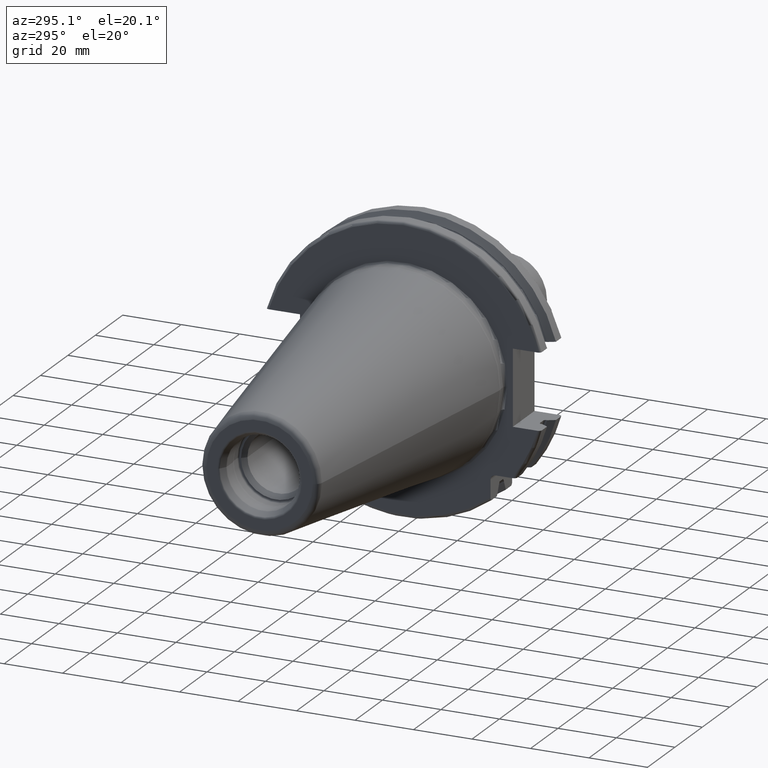
[diagram: clean part render]
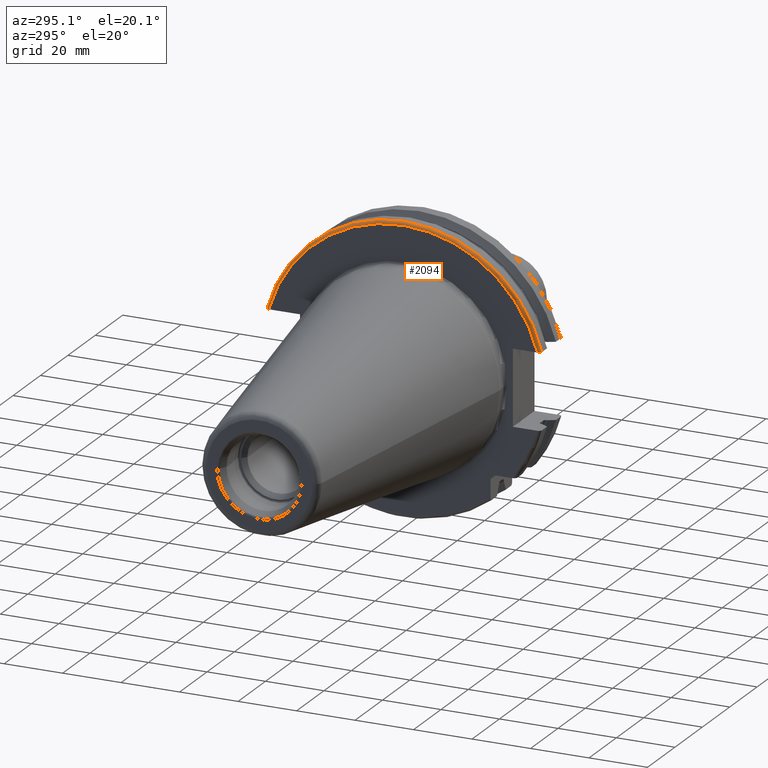
[diagram: same view with one face highlighted and labeled with its STEP entity id]
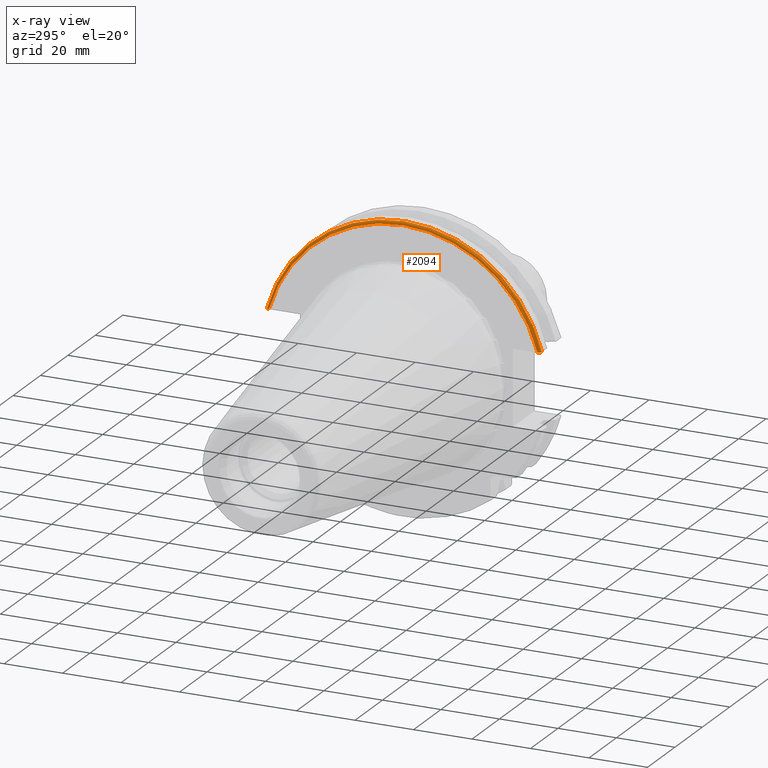
[diagram: x-ray of the same camera — body ghosted, the highlighted face saturated]
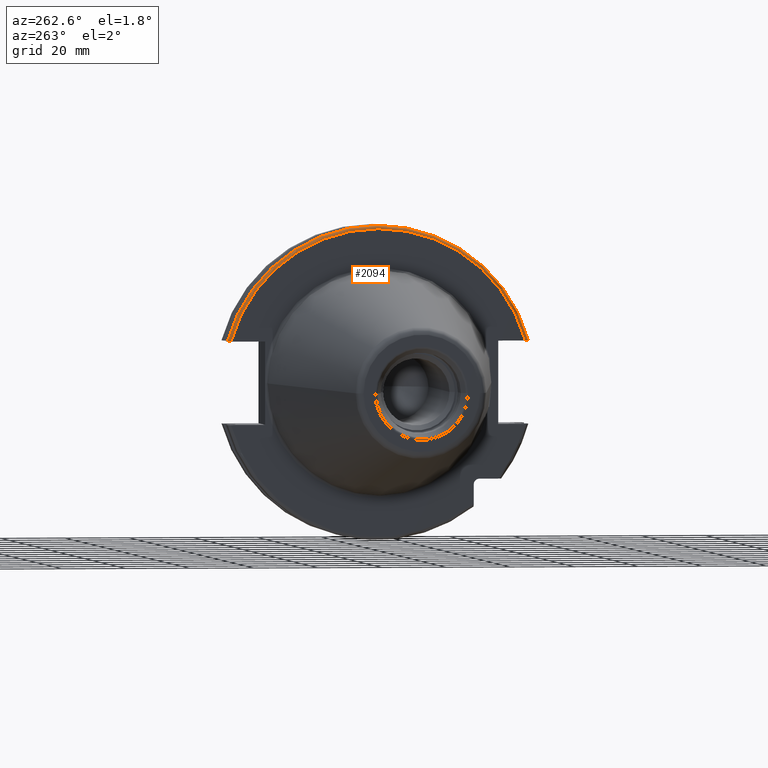
[diagram: same view with one face highlighted and labeled with its STEP entity id]
A machine part, auxiliary view. The second image highlights one B-rep face of the part: STEP entity #2094.
The next image is the same camera in x-ray: the body ghosted, the highlighted face saturated — about 0% of this face is hidden behind the body in this view.
A second angle (auxiliary view) of the same face is appended — the face is thin or edge-on in the first view.
In plain terms, the highlighted toroidal blend (fillet) surface has major radius 47.7375 mm and minor (blend) radius 1 mm.
Its self-contained STEP definition (entity closure, byte-faithful):
#211=CARTESIAN_POINT('',(3.2E0,0.E0,0.E0));
#212=DIRECTION('',(1.E0,0.E0,0.E0));
#213=DIRECTION('',(0.E0,9.627964123359E-1,2.702278083268E-1));
#214=AXIS2_PLACEMENT_3D('',#211,#212,#213);
#507=CARTESIAN_POINT('',(4.2E0,4.699929686974E1,1.29E1));
#508=CARTESIAN_POINT('',(4.123252333679E0,4.699929686974E1,1.29E1));
#509=CARTESIAN_POINT('',(3.974283567116E0,4.698148666181E1,1.29E1));
#510=CARTESIAN_POINT('',(3.759372583830E0,4.690310671304E1,1.29E1));
#511=CARTESIAN_POINT('',(3.568100173391E0,4.677722228850E1,1.29E1));
#512=CARTESIAN_POINT('',(3.409493655806E0,4.661135458292E1,1.29E1));
#513=CARTESIAN_POINT('',(3.290442678355E0,4.641353235870E1,1.29E1));
#514=CARTESIAN_POINT('',(3.216801719921E0,4.619318544857E1,1.29E1));
#515=CARTESIAN_POINT('',(3.2E0,4.604023191736E1,1.29E1));
#516=CARTESIAN_POINT('',(3.2E0,4.596149373389E1,1.29E1));
#518=CARTESIAN_POINT('',(4.2E0,0.E0,0.E0));
#519=DIRECTION('',(1.E0,0.E0,0.E0));
#520=DIRECTION('',(0.E0,9.643354064066E-1,2.646832521159E-1));
#521=AXIS2_PLACEMENT_3D('',#518,#519,#520);
#523=CARTESIAN_POINT('',(3.2E0,-4.596149373389E1,1.29E1));
#524=CARTESIAN_POINT('',(3.2E0,-4.604026443227E1,1.29E1));
#525=CARTESIAN_POINT('',(3.216813255287E0,-4.619328239852E1,1.29E1));
#526=CARTESIAN_POINT('',(3.290538328370E0,-4.641376542139E1,1.29E1));
#527=CARTESIAN_POINT('',(3.409705660893E0,-4.661163928454E1,1.29E1));
#528=CARTESIAN_POINT('',(3.568375595419E0,-4.677744698912E1,1.29E1));
#529=CARTESIAN_POINT('',(3.759602935675E0,-4.690321007119E1,1.29E1));
#530=CARTESIAN_POINT('',(3.974378910530E0,-4.698149887214E1,1.29E1));
#531=CARTESIAN_POINT('',(4.123284460641E0,-4.699929686974E1,1.29E1));
#532=CARTESIAN_POINT('',(4.2E0,-4.699929686974E1,1.29E1));
#1344=CARTESIAN_POINT('',(4.2E0,4.699929686974E1,1.29E1));
#1345=VERTEX_POINT('',#1344);
#1348=CARTESIAN_POINT('',(4.2E0,-4.699929686974E1,1.29E1));
#1349=VERTEX_POINT('',#1348);
#1352=CARTESIAN_POINT('',(3.2E0,4.596149373389E1,1.29E1));
#1354=VERTEX_POINT('',#1352);
#1370=CARTESIAN_POINT('',(3.2E0,-4.596149373389E1,1.29E1));
#1371=VERTEX_POINT('',#1370);
#2083=CARTESIAN_POINT('',(4.2E0,0.E0,0.E0));
#2084=DIRECTION('',(1.E0,0.E0,0.E0));
#2085=DIRECTION('',(0.E0,-1.E0,0.E0));
#2086=AXIS2_PLACEMENT_3D('',#2083,#2084,#2085);
#2087=TOROIDAL_SURFACE('',#2086,4.77375E1,1.E0);
#2088=ORIENTED_EDGE('',*,*,#1895,.F.);
#2089=ORIENTED_EDGE('',*,*,#2065,.T.);
#2090=ORIENTED_EDGE('',*,*,#1955,.F.);
#2091=ORIENTED_EDGE('',*,*,#1734,.F.);
#2092=EDGE_LOOP('',(#2088,#2089,#2090,#2091));
#2093=FACE_OUTER_BOUND('',#2092,.F.);
#2094=ADVANCED_FACE('',(#2093),#2087,.T.);
#215=CIRCLE('',#214,4.77375E1);
#517=B_SPLINE_CURVE_WITH_KNOTS('',3,(#507,#508,#509,#510,#511,#512,#513,#514,
#515,#516),.UNSPECIFIED.,.F.,.F.,(4,1,1,1,1,1,1,4),(0.E0,1.428571428571E-1,
2.857142857143E-1,4.285714285714E-1,5.714285714286E-1,7.142857142857E-1,
8.571428571429E-1,1.E0),.UNSPECIFIED.);
#522=CIRCLE('',#521,4.87375E1);
#533=B_SPLINE_CURVE_WITH_KNOTS('',3,(#523,#524,#525,#526,#527,#528,#529,#530,
#531,#532),.UNSPECIFIED.,.F.,.F.,(4,1,1,1,1,1,1,4),(0.E0,1.428571428571E-1,
2.857142857143E-1,4.285714285714E-1,5.714285714286E-1,7.142857142857E-1,
8.571428571429E-1,1.E0),.UNSPECIFIED.);
#1734=EDGE_CURVE('',#1354,#1371,#215,.T.);
#1895=EDGE_CURVE('',#1345,#1354,#517,.T.);
#1955=EDGE_CURVE('',#1371,#1349,#533,.T.);
#2065=EDGE_CURVE('',#1345,#1349,#522,.T.);